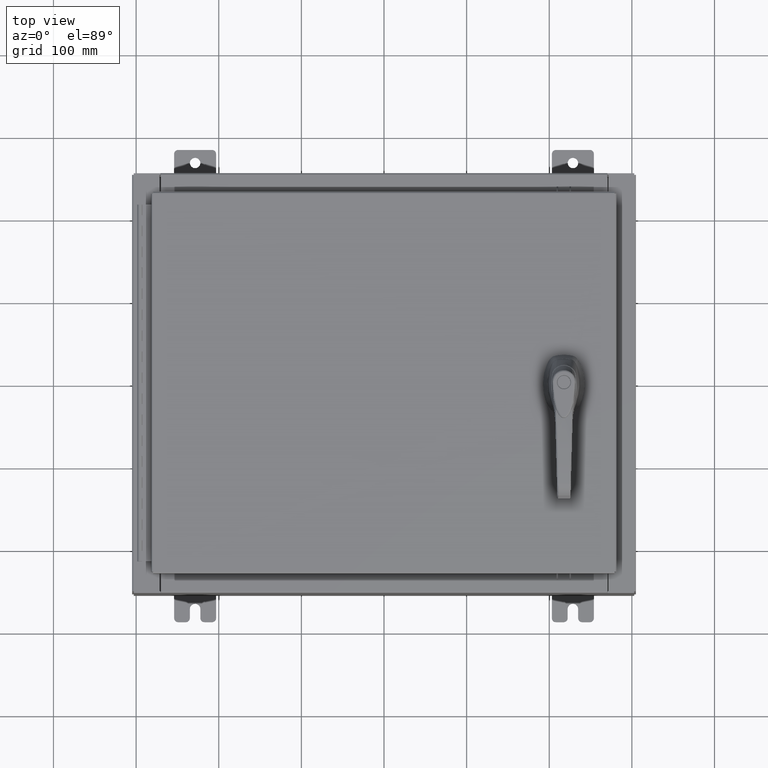
[diagram: clean part render]
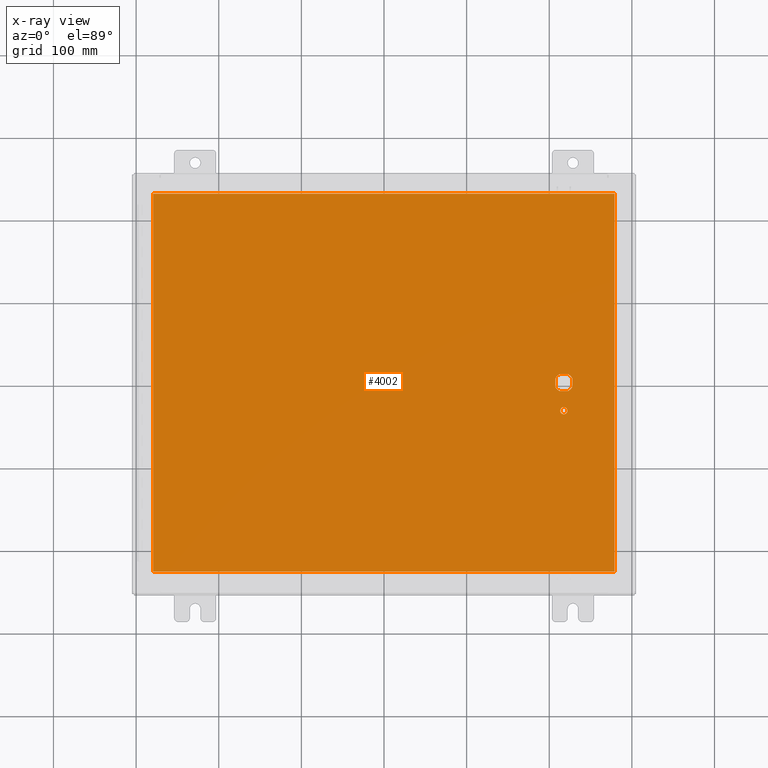
[diagram: x-ray — body ghosted, one internal face saturated and labeled with its STEP entity id]
A machine part, top view, then the same camera in x-ray: the body is ghosted and one INTERNAL B-rep face — a face not visible from any outside direction — is saturated and labeled: STEP entity #4002.
In plain terms, the highlighted planar face has unit normal (0, 0, -1).
Its self-contained STEP definition (entity closure, byte-faithful):
#168 = DIRECTION ( 'NONE',  ( -1.000000000000000000, 1.776356839400251300E-015, 0.0000000000000000000 ) ) ;
#771 = VERTEX_POINT ( 'NONE', #26893 ) ;
#1220 = VECTOR ( 'NONE', #93442, 39.37007874015748100 ) ;
#2157 = ORIENTED_EDGE ( 'NONE', *, *, #80661, .F. ) ;
#2953 = DIRECTION ( 'NONE',  ( 0.0000000000000000000, 0.0000000000000000000, -1.000000000000000000 ) ) ;
#4002 = ADVANCED_FACE ( 'NONE', ( #71725, #108681, #21642 ), #53418, .T. ) ;
#4381 = DIRECTION ( 'NONE',  ( 0.0000000000000000000, 1.000000000000000000, 0.0000000000000000000 ) ) ;
#4920 = CARTESIAN_POINT ( 'NONE',  ( 8.577999999999999400, -1.338000000000000100, -0.07470000000000003000 ) ) ;
#5469 = VERTEX_POINT ( 'NONE', #64230 ) ;
#9237 = CARTESIAN_POINT ( 'NONE',  ( -10.99030000000000000, 9.006299999999999500, -0.07470000000000019700 ) ) ;
#9701 = EDGE_CURVE ( 'NONE', #70346, #53212, #88178, .T. ) ;
#10138 = CIRCLE ( 'NONE', #14680, 0.4499999999999156900 ) ;
#10407 = ORIENTED_EDGE ( 'NONE', *, *, #97105, .T. ) ;
#10892 = CARTESIAN_POINT ( 'NONE',  ( -10.99030000000000000, 9.006299999999997800, -0.07470000000000000300 ) ) ;
#10985 = AXIS2_PLACEMENT_3D ( 'NONE', #101118, #50680, #168 ) ;
#11546 = VERTEX_POINT ( 'NONE', #73411 ) ;
#12932 = LINE ( 'NONE', #94888, #55083 ) ;
#13428 = DIRECTION ( 'NONE',  ( -1.000000000000000000, 0.0000000000000000000, 0.0000000000000000000 ) ) ;
#14680 = AXIS2_PLACEMENT_3D ( 'NONE', #91125, #40736, #99630 ) ;
#14746 = VERTEX_POINT ( 'NONE', #35561 ) ;
#15089 = CIRCLE ( 'NONE', #28145, 0.1715000000000011500 ) ;
#15814 = EDGE_CURVE ( 'NONE', #43089, #109195, #10138, .T. ) ;
#15815 = LINE ( 'NONE', #39343, #60627 ) ;
#17678 = CIRCLE ( 'NONE', #99377, 0.4499999999999156900 ) ;
#18620 = VECTOR ( 'NONE', #87084, 39.37007874015748100 ) ;
#18739 = VERTEX_POINT ( 'NONE', #56770 ) ;
#19573 = CARTESIAN_POINT ( 'NONE',  ( 0.0000000000000000000, 0.0000000000000000000, -0.07470000000000000300 ) ) ;
#21642 = FACE_BOUND ( 'NONE', #60275, .T. ) ;
#22492 = ORIENTED_EDGE ( 'NONE', *, *, #98108, .T. ) ;
#23296 = CARTESIAN_POINT ( 'NONE',  ( -10.99030000000000000, -9.006299999999999500, -0.07470000000000000300 ) ) ;
#23350 = DIRECTION ( 'NONE',  ( -0.0000000000000000000, -0.0000000000000000000, 1.000000000000000000 ) ) ;
#23731 = VECTOR ( 'NONE', #95352, 39.37007874015748100 ) ;
#25777 = CARTESIAN_POINT ( 'NONE',  ( 0.0000000000000000000, -0.4029999999999252000, -0.07470000000000003000 ) ) ;
#26893 = CARTESIAN_POINT ( 'NONE',  ( 8.778227370756310300, 0.4029999999999250300, -0.07470000000000003000 ) ) ;
#27775 = EDGE_CURVE ( 'NONE', #5469, #75327, #36405, .T. ) ;
#28145 = AXIS2_PLACEMENT_3D ( 'NONE', #4920, #63893, #13428 ) ;
#28167 = ORIENTED_EDGE ( 'NONE', *, *, #99276, .T. ) ;
#28235 = CARTESIAN_POINT ( 'NONE',  ( 8.175000000000073500, 0.0000000000000000000, -0.07470000000000003000 ) ) ;
#31968 = ORIENTED_EDGE ( 'NONE', *, *, #101459, .T. ) ;
#34963 = CARTESIAN_POINT ( 'NONE',  ( -10.99030000000000000, -9.006299999999999500, -0.07470000000000021100 ) ) ;
#35561 = CARTESIAN_POINT ( 'NONE',  ( 8.406499999999999400, -1.338000000000000100, -0.07470000000000003000 ) ) ;
#35991 = CARTESIAN_POINT ( 'NONE',  ( 8.377772629243690300, -0.4029999999999250300, -0.07470000000000003000 ) ) ;
#36405 = LINE ( 'NONE', #105247, #53457 ) ;
#37758 = CARTESIAN_POINT ( 'NONE',  ( 8.778227370756310300, -0.4029999999999252000, -0.07470000000000003000 ) ) ;
#39343 = CARTESIAN_POINT ( 'NONE',  ( 0.0000000000000000000, 0.4029999999999252000, -0.07470000000000003000 ) ) ;
#40736 = DIRECTION ( 'NONE',  ( -0.0000000000000000000, -0.0000000000000000000, 1.000000000000000000 ) ) ;
#40921 = CARTESIAN_POINT ( 'NONE',  ( 8.577999999999999400, 0.0000000000000000000, -0.07470000000000003000 ) ) ;
#41171 = AXIS2_PLACEMENT_3D ( 'NONE', #73819, #23350, #82267 ) ;
#41893 = CARTESIAN_POINT ( 'NONE',  ( 8.577999999999999400, 0.0000000000000000000, -0.07470000000000003000 ) ) ;
#42069 = ORIENTED_EDGE ( 'NONE', *, *, #58821, .T. ) ;
#42333 = EDGE_CURVE ( 'NONE', #18739, #14746, #15089, .T. ) ;
#42880 = ORIENTED_EDGE ( 'NONE', *, *, #87384, .F. ) ;
#43089 = VERTEX_POINT ( 'NONE', #47926 ) ;
#43096 = EDGE_CURVE ( 'NONE', #77720, #75308, #17678, .T. ) ;
#44785 = CARTESIAN_POINT ( 'NONE',  ( 10.99030000000000000, -9.006299999999999500, -0.07470000000000000300 ) ) ;
#46679 = LINE ( 'NONE', #9237, #108660 ) ;
#47079 = CARTESIAN_POINT ( 'NONE',  ( 8.175000000000073500, -0.2002273707563079800, -0.07470000000000003000 ) ) ;
#47926 = CARTESIAN_POINT ( 'NONE',  ( 8.377772629243690300, 0.4029999999999252000, -0.07470000000000003000 ) ) ;
#49364 = DIRECTION ( 'NONE',  ( -1.000000000000000000, 8.881784197001256300E-016, 0.0000000000000000000 ) ) ;
#50371 = DIRECTION ( 'NONE',  ( -1.000000000000000000, 0.0000000000000000000, 0.0000000000000000000 ) ) ;
#50611 = CARTESIAN_POINT ( 'NONE',  ( 8.175000000000073500, 0.2002273707563080300, -0.07470000000000003000 ) ) ;
#50680 = DIRECTION ( 'NONE',  ( -0.0000000000000000000, -0.0000000000000000000, 1.000000000000000000 ) ) ;
#51872 = CIRCLE ( 'NONE', #10985, 0.4499999999999156900 ) ;
#53212 = VERTEX_POINT ( 'NONE', #44785 ) ;
#53418 = PLANE ( 'NONE',  #61269 ) ;
#53457 = VECTOR ( 'NONE', #96740, 39.37007874015748100 ) ;
#54759 = EDGE_CURVE ( 'NONE', #65819, #63328, #51872, .T. ) ;
#55083 = VECTOR ( 'NONE', #103393, 39.37007874015748100 ) ;
#56447 = CARTESIAN_POINT ( 'NONE',  ( 8.980999999999925300, -0.2002273707563075900, -0.07470000000000003000 ) ) ;
#56770 = CARTESIAN_POINT ( 'NONE',  ( 8.749500000000001200, -1.338000000000000100, -0.07470000000000003000 ) ) ;
#58821 = EDGE_CURVE ( 'NONE', #75308, #65819, #68576, .T. ) ;
#59659 = DIRECTION ( 'NONE',  ( 0.0000000000000000000, -1.000000000000000000, 0.0000000000000000000 ) ) ;
#60275 = EDGE_LOOP ( 'NONE', ( #85076, #68302, #28167, #22492, #62652, #10407, #85329, #42069 ) ) ;
#60627 = VECTOR ( 'NONE', #63991, 39.37007874015748100 ) ;
#60879 = EDGE_CURVE ( 'NONE', #11546, #63328, #12932, .T. ) ;
#61269 = AXIS2_PLACEMENT_3D ( 'NONE', #19573, #2953, #61906 ) ;
#61906 = DIRECTION ( 'NONE',  ( -1.000000000000000000, 0.0000000000000000000, -0.0000000000000000000 ) ) ;
#62652 = ORIENTED_EDGE ( 'NONE', *, *, #15814, .T. ) ;
#63328 = VERTEX_POINT ( 'NONE', #56447 ) ;
#63347 = CARTESIAN_POINT ( 'NONE',  ( 10.99030000000000000, -9.006299999999999500, -0.07470000000000019700 ) ) ;
#63391 = LINE ( 'NONE', #28235, #18620 ) ;
#63893 = DIRECTION ( 'NONE',  ( -0.0000000000000000000, -0.0000000000000000000, 1.000000000000000000 ) ) ;
#63991 = DIRECTION ( 'NONE',  ( -1.000000000000000000, 0.0000000000000000000, 0.0000000000000000000 ) ) ;
#64230 = CARTESIAN_POINT ( 'NONE',  ( 10.99030000000000000, 9.006299999999999500, -0.07470000000000000300 ) ) ;
#65819 = VERTEX_POINT ( 'NONE', #37758 ) ;
#68224 = EDGE_LOOP ( 'NONE', ( #109436, #31968 ) ) ;
#68302 = ORIENTED_EDGE ( 'NONE', *, *, #60879, .F. ) ;
#68576 = LINE ( 'NONE', #25777, #23731 ) ;
#70346 = VERTEX_POINT ( 'NONE', #23296 ) ;
#71725 = FACE_BOUND ( 'NONE', #68224, .T. ) ;
#72105 = ORIENTED_EDGE ( 'NONE', *, *, #9701, .F. ) ;
#72349 = CIRCLE ( 'NONE', #91114, 0.4499999999999156900 ) ;
#73411 = CARTESIAN_POINT ( 'NONE',  ( 8.980999999999925300, 0.2002273707563080300, -0.07470000000000003000 ) ) ;
#73819 = CARTESIAN_POINT ( 'NONE',  ( 8.577999999999999400, -1.338000000000000100, -0.07470000000000003000 ) ) ;
#75308 = VERTEX_POINT ( 'NONE', #35991 ) ;
#75327 = VERTEX_POINT ( 'NONE', #10892 ) ;
#77720 = VERTEX_POINT ( 'NONE', #47079 ) ;
#80661 = EDGE_CURVE ( 'NONE', #53212, #5469, #81472, .T. ) ;
#81472 = LINE ( 'NONE', #63347, #103970 ) ;
#82267 = DIRECTION ( 'NONE',  ( -1.000000000000000000, 0.0000000000000000000, 0.0000000000000000000 ) ) ;
#85076 = ORIENTED_EDGE ( 'NONE', *, *, #54759, .T. ) ;
#85329 = ORIENTED_EDGE ( 'NONE', *, *, #43096, .T. ) ;
#87084 = DIRECTION ( 'NONE',  ( 0.0000000000000000000, -1.000000000000000000, 0.0000000000000000000 ) ) ;
#87384 = EDGE_CURVE ( 'NONE', #75327, #70346, #46679, .T. ) ;
#88178 = LINE ( 'NONE', #34963, #1220 ) ;
#91114 = AXIS2_PLACEMENT_3D ( 'NONE', #41893, #100806, #50371 ) ;
#91125 = CARTESIAN_POINT ( 'NONE',  ( 8.577999999999999400, 0.0000000000000000000, -0.07470000000000003000 ) ) ;
#93442 = DIRECTION ( 'NONE',  ( 1.000000000000000000, -0.0000000000000000000, -0.0000000000000000000 ) ) ;
#94888 = CARTESIAN_POINT ( 'NONE',  ( 8.980999999999925300, 2.450686610769032800E-014, -0.07470000000000003000 ) ) ;
#95352 = DIRECTION ( 'NONE',  ( 1.000000000000000000, 0.0000000000000000000, 0.0000000000000000000 ) ) ;
#96740 = DIRECTION ( 'NONE',  ( -1.000000000000000000, -0.0000000000000000000, -0.0000000000000000000 ) ) ;
#97105 = EDGE_CURVE ( 'NONE', #109195, #77720, #63391, .T. ) ;
#98108 = EDGE_CURVE ( 'NONE', #771, #43089, #15815, .T. ) ;
#99276 = EDGE_CURVE ( 'NONE', #11546, #771, #72349, .T. ) ;
#99377 = AXIS2_PLACEMENT_3D ( 'NONE', #40921, #99815, #49364 ) ;
#99630 = DIRECTION ( 'NONE',  ( -1.000000000000000000, 0.0000000000000000000, 0.0000000000000000000 ) ) ;
#99815 = DIRECTION ( 'NONE',  ( -0.0000000000000000000, -0.0000000000000000000, 1.000000000000000000 ) ) ;
#100806 = DIRECTION ( 'NONE',  ( -0.0000000000000000000, -0.0000000000000000000, 1.000000000000000000 ) ) ;
#101118 = CARTESIAN_POINT ( 'NONE',  ( 8.577999999999999400, 0.0000000000000000000, -0.07470000000000003000 ) ) ;
#101459 = EDGE_CURVE ( 'NONE', #14746, #18739, #103814, .T. ) ;
#103393 = DIRECTION ( 'NONE',  ( 2.728745808672812900E-015, -1.000000000000000000, 0.0000000000000000000 ) ) ;
#103814 = CIRCLE ( 'NONE', #41171, 0.1715000000000011500 ) ;
#103970 = VECTOR ( 'NONE', #4381, 39.37007874015748100 ) ;
#104819 = EDGE_LOOP ( 'NONE', ( #2157, #72105, #42880, #109161 ) ) ;
#105247 = CARTESIAN_POINT ( 'NONE',  ( 10.99030000000000000, 9.006299999999999500, -0.07470000000000021100 ) ) ;
#108660 = VECTOR ( 'NONE', #59659, 39.37007874015748100 ) ;
#108681 = FACE_OUTER_BOUND ( 'NONE', #104819, .T. ) ;
#109161 = ORIENTED_EDGE ( 'NONE', *, *, #27775, .F. ) ;
#109195 = VERTEX_POINT ( 'NONE', #50611 ) ;
#109436 = ORIENTED_EDGE ( 'NONE', *, *, #42333, .T. ) ;